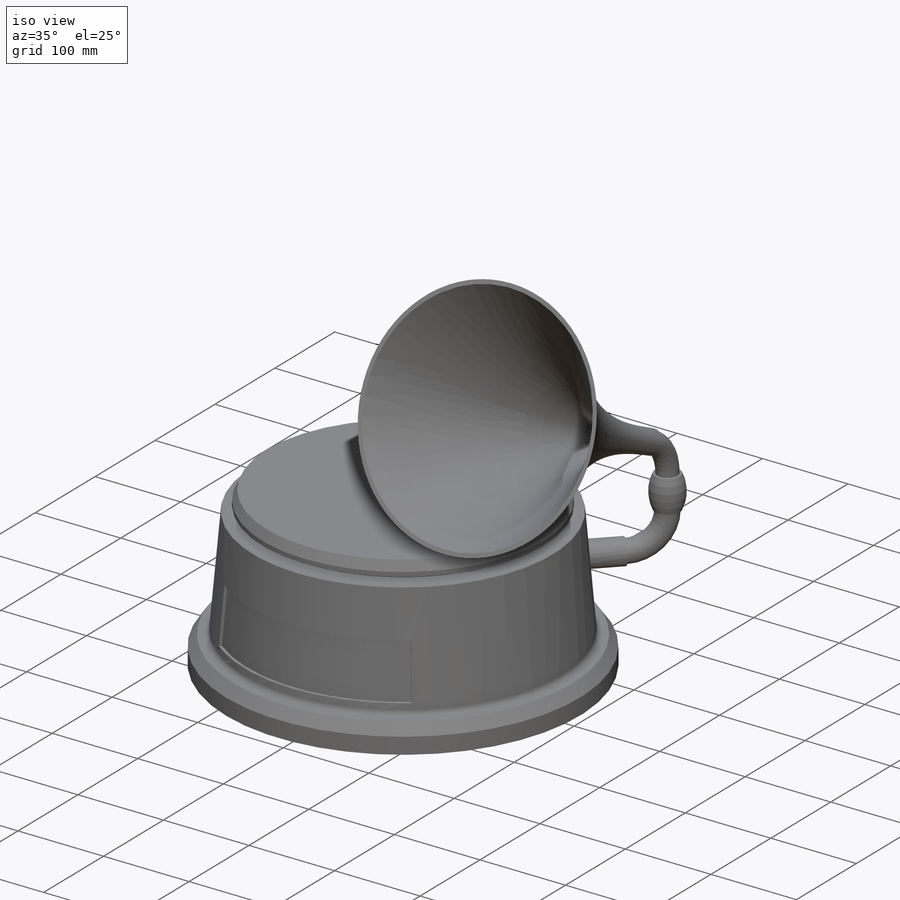
[diagram: iso view]
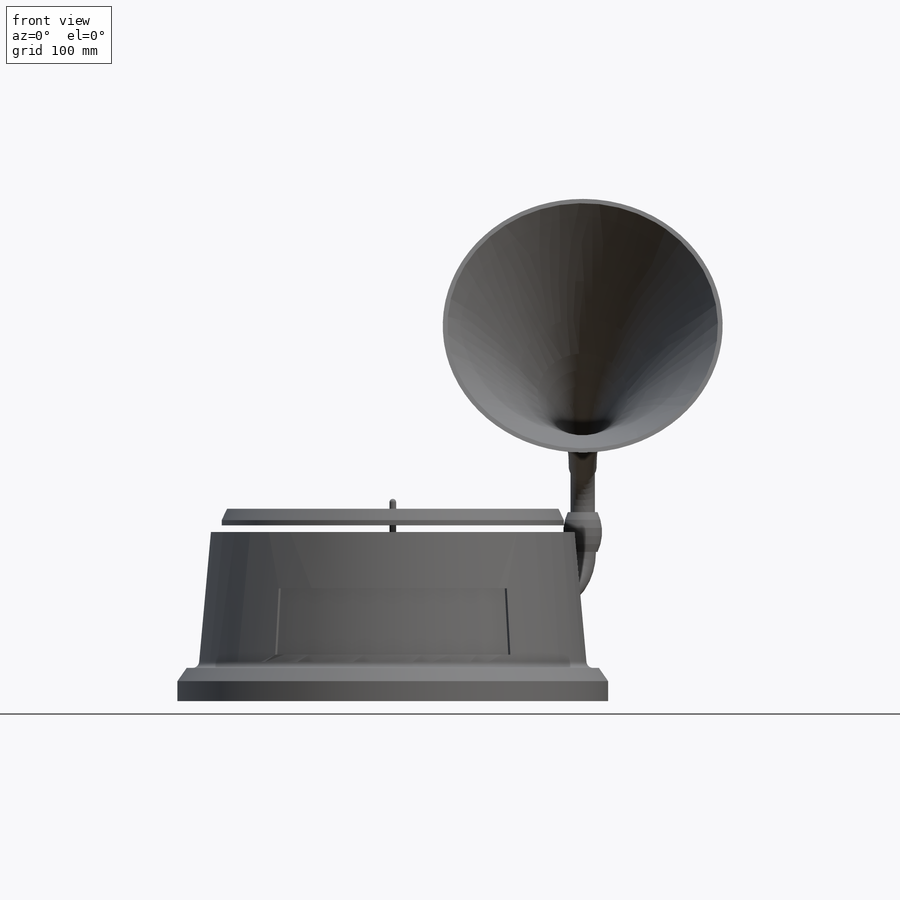
[diagram: front view]
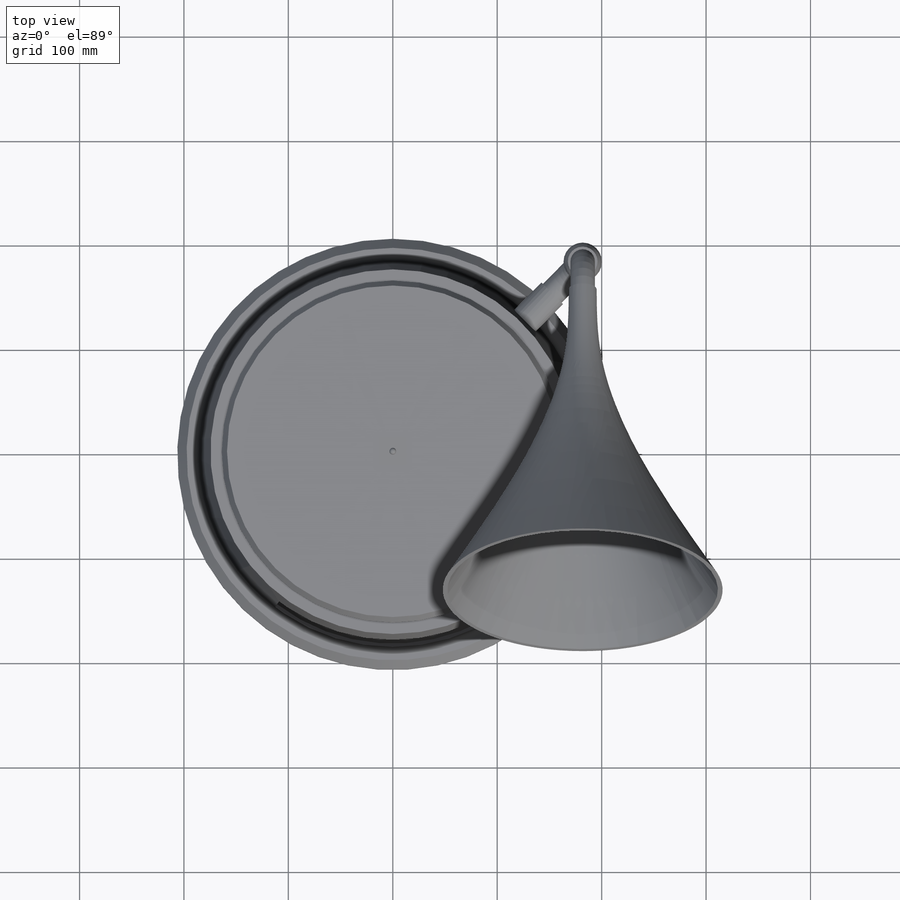
[diagram: top view]
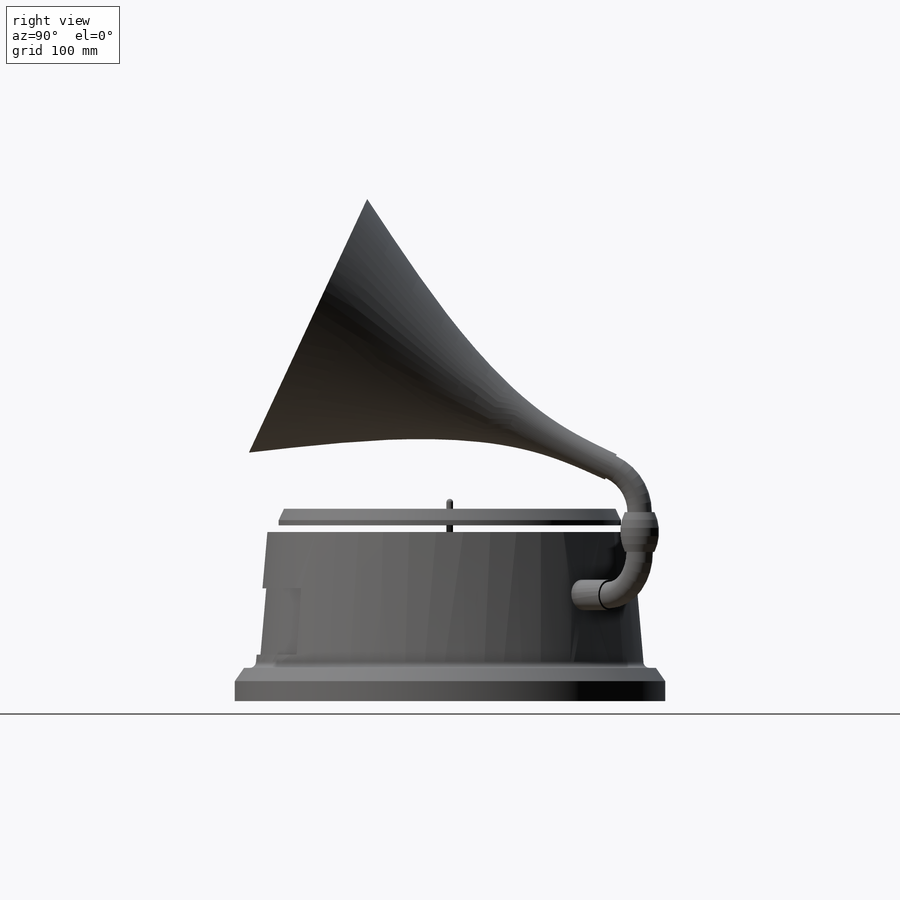
[diagram: right view]
SOLIDWORKS PART (.sldprt)
format: sldprt  version: not decoded by parser v0  size: 489,472 bytes
history: native  units: mm
features: sketch x15, revolve x6, plane x3, shell x2, extrude x2, cut_extrude x2, material x1, fillet x1, cut_revolve x1 (+13 scaffold rows collapsed)
feature tree (46):
  scaffold x13  (default folders/planes/origin — collapsed)
  material  "Material <not specified>"
  sketch  "Sketch2"
  sketch  "Sketch6"  dims[c1.D1=31.75mm c1.D2=12.7mm c1.D3=~13.803221mm c2.D3=35.0deg c2.D4=412.75mm c2.D5=152.4mm c2.D6=~146.98035mm c3.D6=95.0deg c3.D7=22.225mm c3.D8=9.525mm c3.D9=349.25mm]
  revolve  "Revolve2"  Angle=360deg
  shell  "Shell2"  Thickness=6.35mm
  sketch  "Sketch7"  dims[c1.D1=22.225mm c1.D2=15.875mm c1.D3=5.08mm c1.D4=~1.697561mm c2.D4=25.0deg c2.D5=317.5mm]
  revolve  "Revolve3"  Angle=360deg
  shell  "Shell3"  Thickness=2.54mm
  sketch  "Sketch9"  dims[D1=6.35mm]
  extrude  "Boss-Extrude2"  Depth=38.1mm
  sketch  "Sketch10"
  revolve  "Revolve4"  Angle=180deg
  fillet  "Fillet1"  Radius=6.35mm
  sketch  "Sketch13"  dims[D1=3.175mm D2=63.5mm D3=44.45mm]
  cut_revolve  "Cut-Revolve1"  Angle=75deg
  sketch  "Sketch14"  dims[c1.D1=~263.878727mm c2.D1=45.0deg]
  plane  "Plane1"
  sketch  "Sketch15"  dims[D1=29.21mm D2=101.6mm]
  extrude  "Boss-Extrude3"  Depth=215.9mm
  sketch  "Sketch16"  dims[D1=19.05mm]
  cut_extrude  "Cut-Extrude1"  Depth=215.9mm
  sketch  "Sketch17"  dims[D1=29.21mm]
  cut_extrude  "Cut-Extrude2"  [1 undecoded]
  plane  "Plane2"
  sketch  "Sketch20"  dims[D1=1.905mm D2=41.275mm]
  revolve  "Revolve6"  Angle=90deg
  sketch  "Sketch22"  dims[D3=44.45mm D1=1.524mm D2=38.1mm]
  revolve  "Revolve7"  Angle=360deg
  sketch  "Sketch25"  dims[c1.D1=~24.406109mm c1.D2=28.448mm c2.D1=2.54mm c2.D2=47.625mm c2.D3=47.625mm]
  revolve  "Revolve8"  Angle=65deg
  sketch  "Sketch27"
  plane  "Plane3"  Offset=320.04mm
  sketch  "Sketch28"  dims[c1.D1=266.7mm c1.D2=3.81mm c2.D1=3.81mm]
decode coverage: 25 of 29 modeling features carry decoded parameters
note: ~ marks probable driven/reference dimensions
note: 1 parameter value undecoded
note: suppression state not decoded; provenance and decode notes live in map.json
